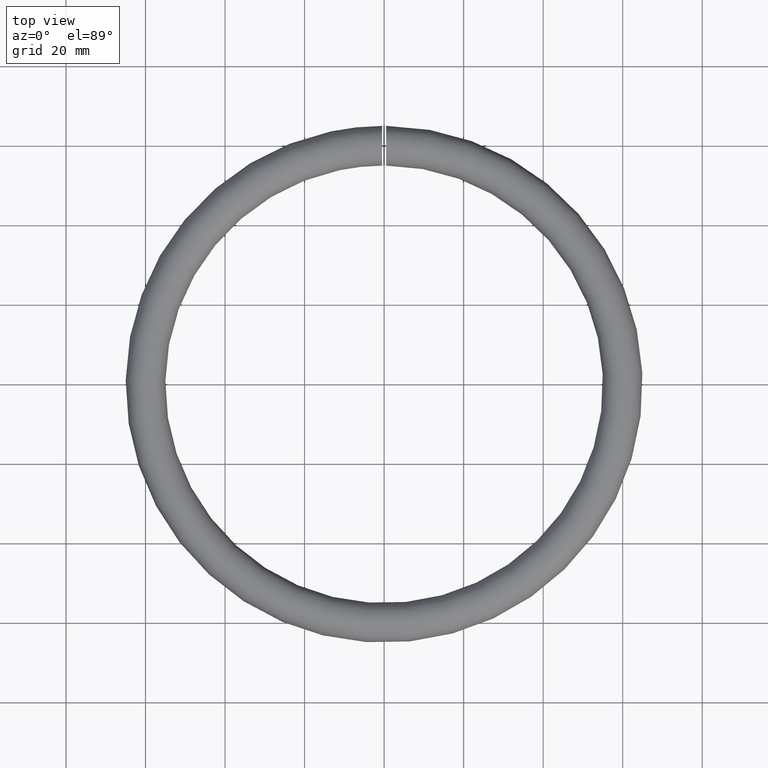
[diagram: clean part render]
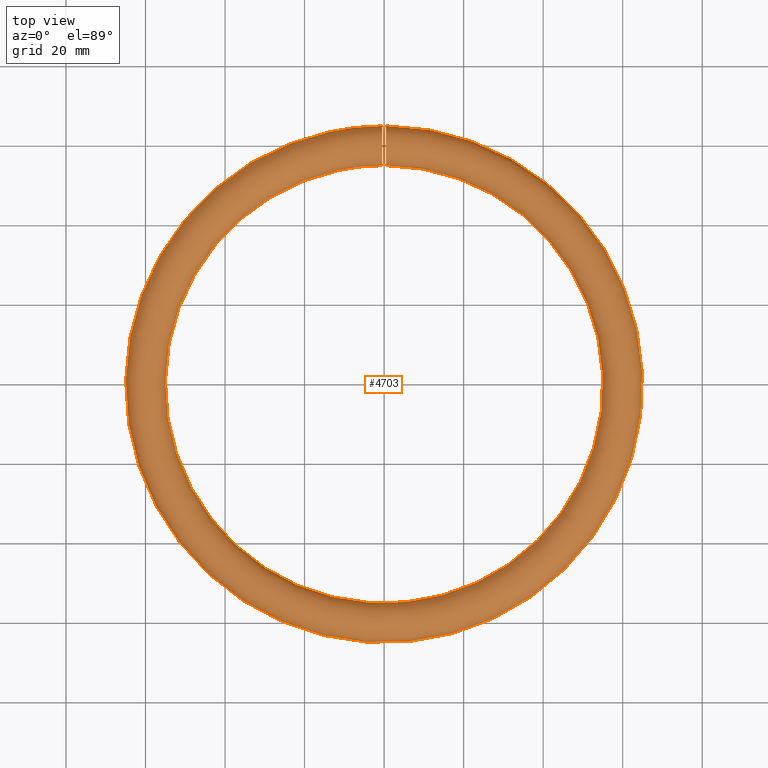
[diagram: same view with one face highlighted and labeled with its STEP entity id]
A machine part, top view. The second image highlights one B-rep face of the part: STEP entity #4703.
In plain terms, the highlighted toroidal blend (fillet) surface has major radius 60 mm and minor (blend) radius 5 mm.
Its self-contained STEP definition (entity closure, byte-faithful):
#38 = CARTESIAN_POINT ( 'NONE',  ( 0.4999999999999998900, 58.89315489876896900, 4.887404280256548700 ) ) ;
#77 = CARTESIAN_POINT ( 'NONE',  ( 0.4999999999999998900, 64.87728872877774200, 1.104604187022204300 ) ) ;
#117 = CARTESIAN_POINT ( 'NONE',  ( 0.4999999999999998900, 55.44683393345332700, 2.096882274186596900 ) ) ;
#159 = CARTESIAN_POINT ( 'NONE',  ( 0.5000000000000000000, 60.19698977564275600, 5.006659087107133900 ) ) ;
#185 = CARTESIAN_POINT ( 'NONE',  ( -0.4999999999999998900, 60.18557242566592400, 5.007363077512956700 ) ) ;
#221 = CARTESIAN_POINT ( 'NONE',  ( -0.5000000000000000000, 62.08518715810486600, 4.546480693068231100 ) ) ;
#304 = CARTESIAN_POINT ( 'NONE',  ( -0.4999999999999998900, 63.44007902270534800, 3.641285780898316600 ) ) ;
#845 = EDGE_CURVE ( 'NONE', #6488, #6488, #1651, .T. ) ;
#939 = CARTESIAN_POINT ( 'NONE',  ( 0.5000000000000000000, 61.10884005932302200, -4.885895020772930600 ) ) ;
#976 = CARTESIAN_POINT ( 'NONE',  ( 0.5000000000000001100, 62.89244280131536900, -4.090061067695225800 ) ) ;
#1008 = CARTESIAN_POINT ( 'NONE',  ( 0.4999999999999998900, 55.03339208659285500, -0.6183031643904402000 ) ) ;
#1056 = CARTESIAN_POINT ( 'NONE',  ( 0.5000000000000000000, 64.23625564134745500, -2.672997751547541600 ) ) ;
#1076 = CARTESIAN_POINT ( 'NONE',  ( -0.5000000000000000000, 55.30614269340605900, -1.736619732219817400 ) ) ;
#1096 = CARTESIAN_POINT ( 'NONE',  ( 0.5000000000000000000, 55.05920606855615100, 0.8470787055584715300 ) ) ;
#1116 = CARTESIAN_POINT ( 'NONE',  ( -0.5000000000000002200, 64.05517475194795900, -2.940396163289975600 ) ) ;
#1149 = CARTESIAN_POINT ( 'NONE',  ( -0.5000000000000001100, 64.26546154141726700, 2.626243190105212100 ) ) ;
#1196 = CARTESIAN_POINT ( 'NONE',  ( -0.5000000000000002200, 64.87172733696323200, -1.163823034939231100 ) ) ;
#1241 = CARTESIAN_POINT ( 'NONE',  ( -0.4999999999999998900, 59.85927532647280500, 5.008685683006770100 ) ) ;
#1280 = CARTESIAN_POINT ( 'NONE',  ( -0.5000000000000003300, 59.80811800922693800, -5.007047872640990600 ) ) ;
#1339 = FACE_OUTER_BOUND ( 'NONE', #2702, .T. ) ;
#1651 = B_SPLINE_CURVE_WITH_KNOTS ( 'NONE', 3,
 ( #7592, #7625, #1991, #1907, #7510, #1076, #2812, #10473, #9488, #4793, #11263, #2979, #7666, #8457, #9409, #3785, #4826, #11416, #2027, #8617, #5613, #10511, #4909, #5817, #2151, #1241, #185, #5946, #3147, #4866, #8652, #221, #6766, #3982, #7835, #304, #8740, #9602, #1149, #2188, #3943, #10549, #6888, #3190, #10587, #11453, #1196, #8775, #4982, #5856, #1116, #11615, #3017, #9713, #7745, #10635, #7710, #8809, #5981, #2069, #11497, #3102, #1280, #2112, #6810, #8700, #11578, #3057, #9640, #4031, #9675, #4109, #4949, #10674 ),
 .UNSPECIFIED., .T., .F.,
 ( 4, 2, 2, 2, 2, 2, 2, 2, 2, 2, 2, 2, 2, 2, 2, 2, 2, 2, 2, 2, 2, 2, 2, 2, 2, 2, 2, 2, 2, 2, 2, 2, 2, 2, 2, 2, 4 ),
 ( 0.0000000000000000000, 0.0009769251201238455700, 0.001465387680185768000, 0.001953850240247690300, 0.002930775360371529100, 0.003907700480495367500, 0.004884625600619206400, 0.005861550720743044300, 0.006838475840866883200, 0.007815400960990721200, 0.008792326081114559100, 0.009769251201238398800, 0.01074617632136223700, 0.01172310144148607500, 0.01270002656160991400, 0.01318848912167183300, 0.01367695168173375200, 0.01465387680185759000, 0.01563080192198142500, 0.01660772704210526300, 0.01758465216222910100, 0.01856157728235294200, 0.01953850240247678000, 0.02051542752260061800, 0.02149235264272445600, 0.02246927776284829400, 0.02344620288297213200, 0.02442312800309597400, 0.02491159056315790000, 0.02540005312321983200, 0.02637697824334368800, 0.02735390336346754300, 0.02833082848359139800, 0.02881929104365331700, 0.02930775360371524000, 0.03028467872383909500, 0.03126160384396294700 ),
 .UNSPECIFIED. ) ;
#1886 = CARTESIAN_POINT ( 'NONE',  ( 0.4999999999999998900, 64.27096100963846900, 2.617048557515233600 ) ) ;
#1907 = CARTESIAN_POINT ( 'NONE',  ( -0.5000000000000001100, 55.49919062772015400, -2.188495810845523700 ) ) ;
#1925 = CARTESIAN_POINT ( 'NONE',  ( 0.5000000000000001100, 64.57510142264838700, 2.038970059683247600 ) ) ;
#1970 = CARTESIAN_POINT ( 'NONE',  ( 0.5000000000000000000, 63.44793938414217400, 3.634010654052955300 ) ) ;
#1991 = CARTESIAN_POINT ( 'NONE',  ( -0.4999999999999997800, 55.72715834264925400, -2.620707558787497100 ) ) ;
#2007 = CARTESIAN_POINT ( 'NONE',  ( 0.5000000000000000000, 62.66912160277186700, 4.239243335284808000 ) ) ;
#2027 = CARTESIAN_POINT ( 'NONE',  ( -0.5000000000000002200, 56.59275429292647900, 3.675873996971059200 ) ) ;
#2045 = CARTESIAN_POINT ( 'NONE',  ( 0.5000000000000000000, 64.93918508328042100, 0.7825126865480964700 ) ) ;
#2069 = CARTESIAN_POINT ( 'NONE',  ( -0.4999999999999998900, 61.11100750113948300, -4.885572422234299800 ) ) ;
#2112 = CARTESIAN_POINT ( 'NONE',  ( -0.5000000000000001100, 59.15872203417611500, -4.939873617134295200 ) ) ;
#2151 = CARTESIAN_POINT ( 'NONE',  ( -0.4999999999999997800, 59.21043214015053000, 4.948339527334812100 ) ) ;
#2188 = CARTESIAN_POINT ( 'NONE',  ( -0.5000000000000002200, 64.57239359823023500, 2.045341741850370500 ) ) ;
#2229 = TOROIDAL_SURFACE ( 'NONE', #3181, 60.00000000000000700, 5.000000000000000000 ) ;
#2702 = EDGE_LOOP ( 'NONE', ( #10396 ) ) ;
#2748 = CARTESIAN_POINT ( 'NONE',  ( 0.5000000000000002200, 58.20512192001700000, -4.678982647022863300 ) ) ;
#2812 = CARTESIAN_POINT ( 'NONE',  ( -0.5000000000000000000, 55.25117202789087400, -1.580179535352380600 ) ) ;
#2832 = CARTESIAN_POINT ( 'NONE',  ( 0.5000000000000000000, 55.90661549237489700, -2.893374639218639500 ) ) ;
#2868 = CARTESIAN_POINT ( 'NONE',  ( 0.4999999999999997800, 63.63593751340318500, -3.445655968530415800 ) ) ;
#2908 = CARTESIAN_POINT ( 'NONE',  ( 0.5000000000000002200, 60.84539078032963700, 4.938430865306676400 ) ) ;
#2954 = CARTESIAN_POINT ( 'NONE',  ( 0.5000000000000003300, 61.79391197988487500, 4.677933987625658000 ) ) ;
#2979 = CARTESIAN_POINT ( 'NONE',  ( -0.4999999999999998900, 55.05858100643584400, 0.8433318382313597100 ) ) ;
#2998 = CARTESIAN_POINT ( 'NONE',  ( 0.4999999999999998900, 64.05363733096029900, -2.942630456858161400 ) ) ;
#3017 = CARTESIAN_POINT ( 'NONE',  ( -0.5000000000000001100, 63.40765901981518500, -3.671936145594836700 ) ) ;
#3057 = CARTESIAN_POINT ( 'NONE',  ( -0.5000000000000001100, 57.91090977503988300, -4.546599012281664200 ) ) ;
#3102 = CARTESIAN_POINT ( 'NONE',  ( -0.5000000000000001100, 60.14112708115366200, -5.008598935324827500 ) ) ;
#3147 = CARTESIAN_POINT ( 'NONE',  ( -0.5000000000000001100, 61.16254443101135500, 4.873378756385419000 ) ) ;
#3181 = AXIS2_PLACEMENT_3D ( 'NONE', #9888, #4270, #3457 ) ;
#3190 = CARTESIAN_POINT ( 'NONE',  ( -0.5000000000000003300, 65.00704605283922900, 0.1366895204871469700 ) ) ;
#3457 = DIRECTION ( 'NONE',  ( -1.000000000000000000, 0.0000000000000000000, 0.0000000000000000000 ) ) ;
#3785 = CARTESIAN_POINT ( 'NONE',  ( -0.4999999999999998900, 55.75624569907827100, 2.667510748512460100 ) ) ;
#3802 = CARTESIAN_POINT ( 'NONE',  ( 0.5000000000000000000, 64.69798779669852700, 1.737329173437652600 ) ) ;
#3839 = CARTESIAN_POINT ( 'NONE',  ( 0.4999999999999996700, 61.16483422717401900, 4.873073384749460500 ) ) ;
#3885 = CARTESIAN_POINT ( 'NONE',  ( 0.5000000000000000000, 58.26540858781561400, 4.701676634998326800 ) ) ;
#3924 = CARTESIAN_POINT ( 'NONE',  ( 0.5000000000000001100, 55.76791381243398900, 2.671192370463901800 ) ) ;
#3943 = CARTESIAN_POINT ( 'NONE',  ( -0.5000000000000002200, 64.69707789523987200, 1.739354893162354600 ) ) ;
#3963 = CARTESIAN_POINT ( 'NONE',  ( 0.5000000000000000000, 55.29573289664106300, -1.731241920395112200 ) ) ;
#3982 = CARTESIAN_POINT ( 'NONE',  ( -0.4999999999999998900, 62.66732908763710000, 4.240549853958957400 ) ) ;
#4031 = CARTESIAN_POINT ( 'NONE',  ( -0.5000000000000001100, 57.33401335141402200, -4.243841790537481500 ) ) ;
#4109 = CARTESIAN_POINT ( 'NONE',  ( -0.5000000000000000000, 56.55395301440306400, -3.639892482152598400 ) ) ;
#4270 = DIRECTION ( 'NONE',  ( -0.0000000000000000000, -0.0000000000000000000, -1.000000000000000000 ) ) ;
#4703 = ADVANCED_FACE ( 'NONE', ( #10476, #1339 ), #2229, .T. ) ;
#4735 = CARTESIAN_POINT ( 'NONE',  ( 0.5000000000000001100, 57.10817945523770300, 4.093741199956516800 ) ) ;
#4775 = CARTESIAN_POINT ( 'NONE',  ( 0.5000000000000002200, 56.05004446224652500, 3.072780526479476300 ) ) ;
#4793 = CARTESIAN_POINT ( 'NONE',  ( -0.4999999999999998900, 54.98897379199630100, -0.1384263310310011000 ) ) ;
#4808 = CARTESIAN_POINT ( 'NONE',  ( 0.5000000000000002200, 64.83799181653995400, 1.265727986549484200 ) ) ;
#4826 = CARTESIAN_POINT ( 'NONE',  ( -0.4999999999999996700, 55.94046737549110300, 2.940508758694046200 ) ) ;
#4842 = CARTESIAN_POINT ( 'NONE',  ( 0.5000000000000000000, 55.32030226674778100, 1.796704547857831600 ) ) ;
#4866 = CARTESIAN_POINT ( 'NONE',  ( -0.4999999999999998900, 61.62935624176901700, 4.729176064796648800 ) ) ;
#4886 = CARTESIAN_POINT ( 'NONE',  ( 0.5000000000000000000, 55.72584115753174700, -2.619077925060297100 ) ) ;
#4900 = B_SPLINE_CURVE_WITH_KNOTS ( 'NONE', 3,
 ( #5632, #8393, #6473, #12150, #6399, #8282, #9304, #6514, #2748, #9229, #9504, #6626, #6586, #6711, #939, #10529, #10448, #7528, #976, #9468, #2868, #2998, #1056, #8552, #6673, #7688, #10493, #5668, #11395, #9539, #2045, #77, #4808, #3802, #1925, #1886, #11470, #5796, #1970, #7643, #2007, #10368, #2954, #3839, #2908, #159, #7605, #10408, #38, #3885, #8508, #7570, #4735, #11434, #6748, #4775, #11354, #3924, #5750, #117, #4842, #8472, #1096, #5704, #11314, #1008, #8634, #9578, #12224, #3963, #8600, #4886, #2832, #9425 ),
 .UNSPECIFIED., .T., .F.,
 ( 4, 2, 2, 2, 2, 2, 2, 2, 2, 2, 2, 2, 2, 2, 2, 2, 2, 2, 2, 2, 2, 2, 2, 2, 2, 2, 2, 2, 2, 2, 2, 2, 2, 2, 2, 2, 4 ),
 ( 0.0000000000000000000, 0.0009769244311727907200, 0.001465386646759186100, 0.001953848862345581400, 0.002930773293518372200, 0.003907697724691162900, 0.004884622155863953600, 0.005861546587036744300, 0.006838471018209535900, 0.007815395449382306700, 0.008792319880555081800, 0.009769244311727855200, 0.01074616874290062900, 0.01172309317407340200, 0.01270001760524617500, 0.01318847982083256100, 0.01367694203641894900, 0.01465386646759172200, 0.01563079089876449500, 0.01660771532993726700, 0.01758463976111004200, 0.01856156419228281400, 0.01953848862345558500, 0.02051541305462836400, 0.02149233748580113600, 0.02246926191697391100, 0.02344618634814668200, 0.02442311077931945400, 0.02491157299490584900, 0.02540003521049224000, 0.02637695964166502200, 0.02735388407283780400, 0.02833080850401059300, 0.02881927071959698400, 0.02930773293518337500, 0.03028465736635616700, 0.03126158179752895600 ),
 .UNSPECIFIED. ) ;
#4909 = CARTESIAN_POINT ( 'NONE',  ( -0.4999999999999997800, 58.25657452422230200, 4.698426438768255900 ) ) ;
#4949 = CARTESIAN_POINT ( 'NONE',  ( -0.5000000000000003300, 56.32282932803268200, -3.406441952857651500 ) ) ;
#4982 = CARTESIAN_POINT ( 'NONE',  ( -0.5000000000000002200, 64.55249435687298400, -2.089091025805561100 ) ) ;
#5307 = EDGE_CURVE ( 'NONE', #9280, #9280, #4900, .T. ) ;
#5468 = ORIENTED_EDGE ( 'NONE', *, *, #5307, .T. ) ;
#5613 = CARTESIAN_POINT ( 'NONE',  ( -0.5000000000000000000, 57.37669471050357800, 4.270428858069352400 ) ) ;
#5632 = CARTESIAN_POINT ( 'NONE',  ( 0.5000000000000000000, 56.11472242562348400, -3.149908315046032300 ) ) ;
#5668 = CARTESIAN_POINT ( 'NONE',  ( 0.4999999999999996700, 65.00524440592767000, -0.1928117401359702400 ) ) ;
#5704 = CARTESIAN_POINT ( 'NONE',  ( 0.5000000000000001100, 54.99098755423096200, 0.1977859164090911800 ) ) ;
#5750 = CARTESIAN_POINT ( 'NONE',  ( 0.4999999999999998900, 55.68169965180397400, 2.529544059272043700 ) ) ;
#5796 = CARTESIAN_POINT ( 'NONE',  ( 0.4999999999999998900, 63.67672295691558300, 3.402020341326776000 ) ) ;
#5817 = CARTESIAN_POINT ( 'NONE',  ( -0.4999999999999998900, 58.88437012275057500, 4.885424081454841500 ) ) ;
#5856 = CARTESIAN_POINT ( 'NONE',  ( -0.5000000000000003300, 64.24125837257189200, -2.665025201435275100 ) ) ;
#5946 = CARTESIAN_POINT ( 'NONE',  ( -0.4999999999999998900, 60.84206407812234100, 4.939267275008761600 ) ) ;
#5981 = CARTESIAN_POINT ( 'NONE',  ( -0.5000000000000001100, 61.58280741700043800, -4.745020266645820300 ) ) ;
#6399 = CARTESIAN_POINT ( 'NONE',  ( 0.4999999999999998900, 57.05908723579904100, -4.048560682790175700 ) ) ;
#6473 = CARTESIAN_POINT ( 'NONE',  ( 0.5000000000000003300, 56.55263073335864700, -3.638268410557932600 ) ) ;
#6488 = VERTEX_POINT ( 'NONE', #9893 ) ;
#6514 = CARTESIAN_POINT ( 'NONE',  ( 0.5000000000000000000, 57.90492269842877000, -4.552702135319230500 ) ) ;
#6586 = CARTESIAN_POINT ( 'NONE',  ( 0.5000000000000002200, 60.13021347348387700, -5.009049399255856000 ) ) ;
#6626 = CARTESIAN_POINT ( 'NONE',  ( 0.5000000000000001100, 59.80432880869075500, -5.006887082005046200 ) ) ;
#6673 = CARTESIAN_POINT ( 'NONE',  ( 0.5000000000000000000, 64.67756622448807500, -1.791214833363477000 ) ) ;
#6711 = CARTESIAN_POINT ( 'NONE',  ( 0.5000000000000000000, 60.78495330833986500, -4.948605150079908200 ) ) ;
#6748 = CARTESIAN_POINT ( 'NONE',  ( 0.5000000000000001100, 56.36250676103702500, 3.448309309798911900 ) ) ;
#6766 = CARTESIAN_POINT ( 'NONE',  ( -0.5000000000000001100, 62.23474277743568500, 4.474799636912713700 ) ) ;
#6810 = CARTESIAN_POINT ( 'NONE',  ( -0.4999999999999997800, 58.83947495253333700, -4.875023117213133100 ) ) ;
#6888 = CARTESIAN_POINT ( 'NONE',  ( -0.5000000000000002200, 64.94584457993148900, 0.7924853453971187900 ) ) ;
#7510 = CARTESIAN_POINT ( 'NONE',  ( -0.5000000000000000000, 55.43012214614426400, -2.040527951451388300 ) ) ;
#7528 = CARTESIAN_POINT ( 'NONE',  ( 0.5000000000000000000, 62.62047917227074800, -4.269764066136921200 ) ) ;
#7570 = CARTESIAN_POINT ( 'NONE',  ( 0.5000000000000000000, 57.38078390495552100, 4.272857640881511500 ) ) ;
#7592 = CARTESIAN_POINT ( 'NONE',  ( -0.5000000000000001100, 56.11472242562347600, -3.149908315046031900 ) ) ;
#7605 = CARTESIAN_POINT ( 'NONE',  ( 0.5000000000000000000, 59.86437776786059600, 5.008907260361825200 ) ) ;
#7625 = CARTESIAN_POINT ( 'NONE',  ( -0.4999999999999998900, 55.90661552321427800, -2.893374677234414000 ) ) ;
#7643 = CARTESIAN_POINT ( 'NONE',  ( 0.4999999999999998900, 62.94282088899643000, 4.054136376590600200 ) ) ;
#7666 = CARTESIAN_POINT ( 'NONE',  ( -0.5000000000000003300, 55.12368696623266800, 1.162655010889344500 ) ) ;
#7688 = CARTESIAN_POINT ( 'NONE',  ( 0.4999999999999998900, 64.87045784207194300, -1.168771660331160600 ) ) ;
#7710 = CARTESIAN_POINT ( 'NONE',  ( -0.5000000000000002200, 62.04256522123768000, -4.565802089292784400 ) ) ;
#7745 = CARTESIAN_POINT ( 'NONE',  ( -0.5000000000000000000, 62.62227226691656800, -4.268404862428979200 ) ) ;
#7835 = CARTESIAN_POINT ( 'NONE',  ( -0.5000000000000000000, 62.93714376354510200, 4.058100744442491200 ) ) ;
#8282 = CARTESIAN_POINT ( 'NONE',  ( 0.5000000000000000000, 57.33089573712733500, -4.232546237097120700 ) ) ;
#8393 = CARTESIAN_POINT ( 'NONE',  ( 0.5000000000000001100, 56.32282935887208500, -3.406441990873425600 ) ) ;
#8457 = CARTESIAN_POINT ( 'NONE',  ( -0.4999999999999998900, 55.31789620595299100, 1.790850150822018900 ) ) ;
#8472 = CARTESIAN_POINT ( 'NONE',  ( 0.4999999999999998900, 55.12638081793516400, 1.173246755012226500 ) ) ;
#8508 = CARTESIAN_POINT ( 'NONE',  ( 0.4999999999999998900, 57.95756858984432100, 4.576404482917245900 ) ) ;
#8552 = CARTESIAN_POINT ( 'NONE',  ( 0.5000000000000000000, 64.54873799281382700, -2.097291378383404000 ) ) ;
#8600 = CARTESIAN_POINT ( 'NONE',  ( 0.5000000000000000000, 55.41874691366292900, -2.035095731322798900 ) ) ;
#8617 = CARTESIAN_POINT ( 'NONE',  ( -0.4999999999999998900, 57.09903302534638000, 4.086980990628372700 ) ) ;
#8634 = CARTESIAN_POINT ( 'NONE',  ( 0.5000000000000002200, 55.05661895932041000, -0.7824795090501465200 ) ) ;
#8652 = CARTESIAN_POINT ( 'NONE',  ( -0.5000000000000000000, 61.78278234525879500, 4.673474273485802600 ) ) ;
#8700 = CARTESIAN_POINT ( 'NONE',  ( -0.5000000000000001100, 58.36891842118672000, -4.730062353052463000 ) ) ;
#8740 = CARTESIAN_POINT ( 'NONE',  ( -0.5000000000000001100, 63.67431757099251400, 3.404619284754966100 ) ) ;
#8775 = CARTESIAN_POINT ( 'NONE',  ( -0.5000000000000003300, 64.67856309665515400, -1.788840177819031300 ) ) ;
#8809 = CARTESIAN_POINT ( 'NONE',  ( -0.5000000000000000000, 61.73919592722586500, -4.689883458183302000 ) ) ;
#9080 = CARTESIAN_POINT ( 'NONE',  ( 0.5000000000000000000, 56.11472242562347600, -3.149908315046031900 ) ) ;
#9229 = CARTESIAN_POINT ( 'NONE',  ( 0.5000000000000000000, 58.82932252385983000, -4.872498950015219600 ) ) ;
#9280 = VERTEX_POINT ( 'NONE', #9080 ) ;
#9304 = CARTESIAN_POINT ( 'NONE',  ( 0.5000000000000001100, 57.47263719456097400, -4.318596687209423000 ) ) ;
#9409 = CARTESIAN_POINT ( 'NONE',  ( -0.5000000000000003300, 55.44607136165036100, 2.094827678141042000 ) ) ;
#9425 = CARTESIAN_POINT ( 'NONE',  ( 0.5000000000000000000, 56.11472242562348400, -3.149908315046032300 ) ) ;
#9468 = CARTESIAN_POINT ( 'NONE',  ( 0.4999999999999998900, 63.39915297700336800, -3.679494238805794300 ) ) ;
#9488 = CARTESIAN_POINT ( 'NONE',  ( -0.5000000000000003300, 55.04959248790058300, -0.7891201500817749400 ) ) ;
#9504 = CARTESIAN_POINT ( 'NONE',  ( 0.5000000000000003300, 59.15546077636666000, -4.939302574915194200 ) ) ;
#9539 = CARTESIAN_POINT ( 'NONE',  ( 0.4999999999999998900, 64.96204689679203200, 0.6208979362039488400 ) ) ;
#9578 = CARTESIAN_POINT ( 'NONE',  ( 0.5000000000000002200, 55.11845415063823600, -1.104307379223220500 ) ) ;
#9602 = CARTESIAN_POINT ( 'NONE',  ( -0.5000000000000000000, 64.08563596298905900, 2.897949098149381200 ) ) ;
#9640 = CARTESIAN_POINT ( 'NONE',  ( -0.5000000000000000000, 57.76378015531560100, -4.476104196871873800 ) ) ;
#9675 = CARTESIAN_POINT ( 'NONE',  ( -0.5000000000000001100, 57.06205360006939000, -4.060808603255782900 ) ) ;
#9713 = CARTESIAN_POINT ( 'NONE',  ( -0.5000000000000000000, 62.89598206646802900, -4.087843847503904700 ) ) ;
#9888 = CARTESIAN_POINT ( 'NONE',  ( 0.0000000000000000000, 0.0000000000000000000, 0.0000000000000000000 ) ) ;
#9893 = CARTESIAN_POINT ( 'NONE',  ( -0.5000000000000000000, 56.11472242562347600, -3.149908315046031900 ) ) ;
#10259 = EDGE_LOOP ( 'NONE', ( #5468 ) ) ;
#10368 = CARTESIAN_POINT ( 'NONE',  ( 0.4999999999999998900, 62.09667319761902600, 4.549896926809775100 ) ) ;
#10396 = ORIENTED_EDGE ( 'NONE', *, *, #845, .T. ) ;
#10408 = CARTESIAN_POINT ( 'NONE',  ( 0.5000000000000001100, 59.21295369542865200, 4.948824081966435500 ) ) ;
#10448 = CARTESIAN_POINT ( 'NONE',  ( 0.4999999999999998900, 62.03831388544017500, -4.576605776986556700 ) ) ;
#10473 = CARTESIAN_POINT ( 'NONE',  ( -0.4999999999999998900, 55.11124734437262200, -1.108908889369799100 ) ) ;
#10476 = FACE_OUTER_BOUND ( 'NONE', #10259, .T. ) ;
#10493 = CARTESIAN_POINT ( 'NONE',  ( 0.4999999999999998900, 64.93646798648423200, -0.8492208979479956000 ) ) ;
#10511 = CARTESIAN_POINT ( 'NONE',  ( -0.5000000000000000000, 57.95506702144496100, 4.575361582789545500 ) ) ;
#10529 = CARTESIAN_POINT ( 'NONE',  ( 0.4999999999999998900, 61.73319225904212700, -4.700538124636108400 ) ) ;
#10549 = CARTESIAN_POINT ( 'NONE',  ( -0.5000000000000003300, 64.88299889220709800, 1.115147383570019400 ) ) ;
#10587 = CARTESIAN_POINT ( 'NONE',  ( -0.5000000000000002200, 65.00511325775023900, -0.1893649413860227500 ) ) ;
#10635 = CARTESIAN_POINT ( 'NONE',  ( -0.4999999999999996700, 62.19035665607113100, -4.496670417964231200 ) ) ;
#10674 = CARTESIAN_POINT ( 'NONE',  ( -0.5000000000000001100, 56.11472242562347600, -3.149908315046031900 ) ) ;
#11263 = CARTESIAN_POINT ( 'NONE',  ( -0.5000000000000003300, 54.99087393106393800, 0.1944780191786932000 ) ) ;
#11314 = CARTESIAN_POINT ( 'NONE',  ( 0.5000000000000001100, 54.98859813877535200, -0.1279717597175986100 ) ) ;
#11354 = CARTESIAN_POINT ( 'NONE',  ( 0.5000000000000000000, 55.95191030235101700, 2.942432246786080200 ) ) ;
#11395 = CARTESIAN_POINT ( 'NONE',  ( 0.4999999999999995600, 65.00687277820293300, 0.1343818346189864200 ) ) ;
#11416 = CARTESIAN_POINT ( 'NONE',  ( -0.4999999999999998900, 56.36080885270428800, 3.446836957713119700 ) ) ;
#11434 = CARTESIAN_POINT ( 'NONE',  ( 0.4999999999999997800, 56.59566342738221300, 3.678887599058345200 ) ) ;
#11453 = CARTESIAN_POINT ( 'NONE',  ( -0.5000000000000003300, 64.93813559647314500, -0.8378977398649825000 ) ) ;
#11470 = CARTESIAN_POINT ( 'NONE',  ( 0.5000000000000000000, 64.08768478012076700, 2.895057299942197300 ) ) ;
#11497 = CARTESIAN_POINT ( 'NONE',  ( -0.5000000000000000000, 60.79118479400963800, -4.947457926498201700 ) ) ;
#11578 = CARTESIAN_POINT ( 'NONE',  ( -0.5000000000000001100, 58.21306315539817400, -4.673475464230784300 ) ) ;
#11615 = CARTESIAN_POINT ( 'NONE',  ( -0.5000000000000003300, 63.63916473676604800, -3.442147961745890300 ) ) ;
#12150 = CARTESIAN_POINT ( 'NONE',  ( 0.5000000000000000000, 56.92854284291551900, -3.950463697760421100 ) ) ;
#12224 = CARTESIAN_POINT ( 'NONE',  ( 0.5000000000000001100, 55.15709144388197400, -1.262813432539575900 ) ) ;